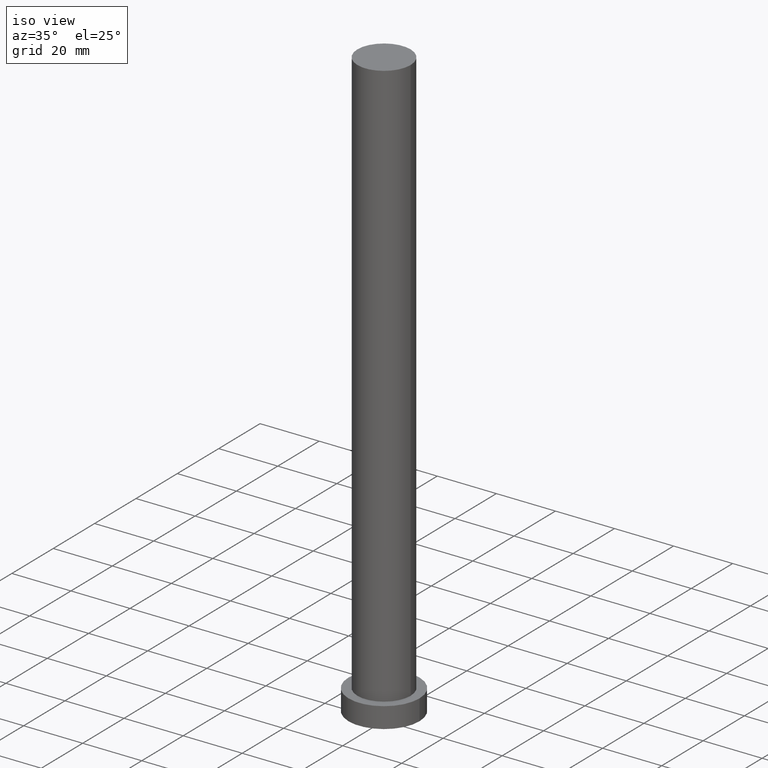
[diagram: clean part render]
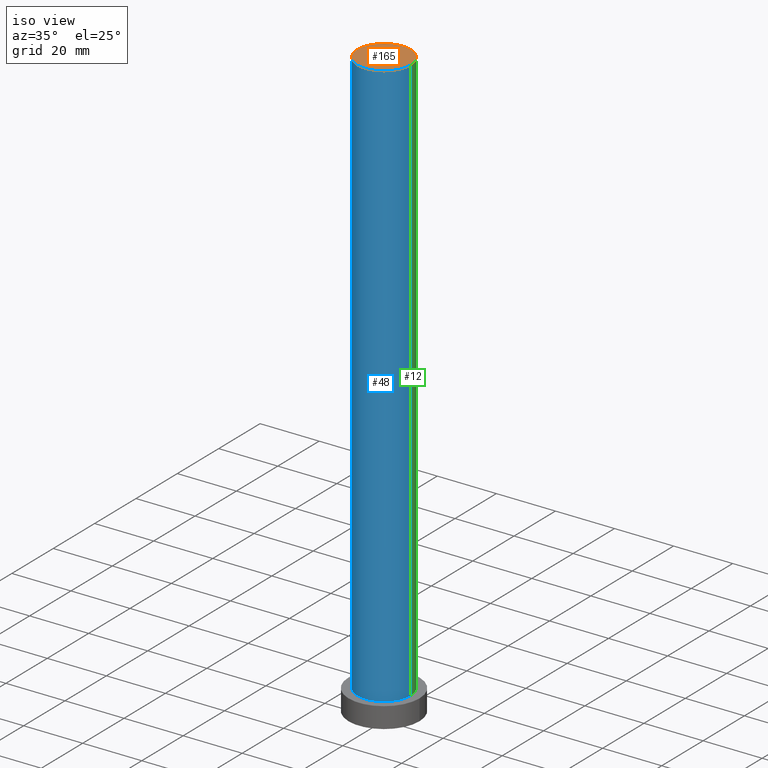
[diagram: same view with three faces highlighted in distinct colors, each labeled with its STEP entity id]
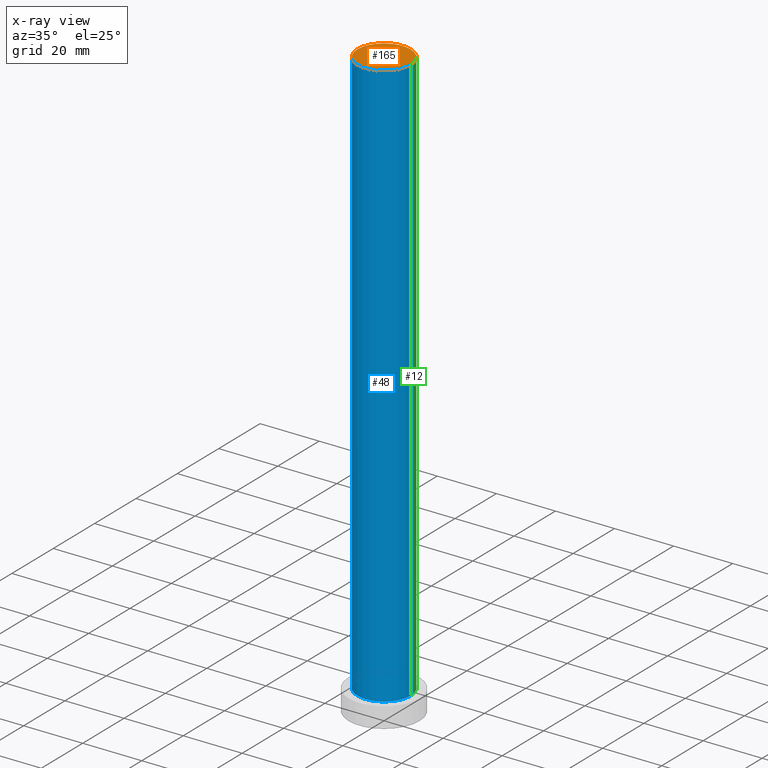
[diagram: x-ray of the same camera — body ghosted, the three highlighted faces saturated]
A machine part, iso view with three faces highlighted in distinct colors.
The next image is the same camera in x-ray (body ghosted, the three faces saturated) — at least one of them is partly hidden behind the body in this view.
Their STEP definitions:

[orange] entity #165 — the highlighted planar face has unit normal (0, 0, 1).
#10 = VERTEX_POINT ( 'NONE', #183 ) ;
#22 = AXIS2_PLACEMENT_3D ( 'NONE', #181, #148, #123 ) ;
#29 = ORIENTED_EDGE ( 'NONE', *, *, #110, .T. ) ;
#46 = CIRCLE ( 'NONE', #22, 9.000000000000000000 ) ;
#68 = EDGE_LOOP ( 'NONE', ( #29, #222 ) ) ;
#72 = DIRECTION ( 'NONE',  ( 0.000000000000000000, 0.000000000000000000, 1.000000000000000000 ) ) ;
#76 = CARTESIAN_POINT ( 'NONE',  ( 9.000000000000000000, 1.102182119232617714E-15, 200.0000000000000000 ) ) ;
#108 = VERTEX_POINT ( 'NONE', #76 ) ;
#109 = AXIS2_PLACEMENT_3D ( 'NONE', #140, #72, #154 ) ;
#110 = EDGE_CURVE ( 'NONE', #10, #108, #242, .T. ) ;
#111 = AXIS2_PLACEMENT_3D ( 'NONE', #235, #232, #229 ) ;
#123 = DIRECTION ( 'NONE',  ( 1.000000000000000000, 0.000000000000000000, 0.000000000000000000 ) ) ;
#140 = CARTESIAN_POINT ( 'NONE',  ( 0.000000000000000000, 0.000000000000000000, 200.0000000000000000 ) ) ;
#148 = DIRECTION ( 'NONE',  ( 0.000000000000000000, 0.000000000000000000, 1.000000000000000000 ) ) ;
#154 = DIRECTION ( 'NONE',  ( 1.000000000000000000, 0.000000000000000000, -0.000000000000000000 ) ) ;
#158 = FACE_OUTER_BOUND ( 'NONE', #68, .T. ) ;
#165 = ADVANCED_FACE ( 'NONE', ( #158 ), #245, .T. ) ;
#181 = CARTESIAN_POINT ( 'NONE',  ( 0.000000000000000000, 0.000000000000000000, 200.0000000000000000 ) ) ;
#183 = CARTESIAN_POINT ( 'NONE',  ( -9.000000000000000000, 0.000000000000000000, 200.0000000000000000 ) ) ;
#222 = ORIENTED_EDGE ( 'NONE', *, *, #248, .T. ) ;
#229 = DIRECTION ( 'NONE',  ( 1.000000000000000000, 0.000000000000000000, 0.000000000000000000 ) ) ;
#232 = DIRECTION ( 'NONE',  ( 0.000000000000000000, 0.000000000000000000, 1.000000000000000000 ) ) ;
#235 = CARTESIAN_POINT ( 'NONE',  ( 0.000000000000000000, 0.000000000000000000, 200.0000000000000000 ) ) ;
#242 = CIRCLE ( 'NONE', #111, 9.000000000000000000 ) ;
#245 = PLANE ( 'NONE',  #109 ) ;
#248 = EDGE_CURVE ( 'NONE', #108, #10, #46, .T. ) ;

[blue] entity #48 — the highlighted cylindrical surface (edge-blend (fillet) strip) has radius 9 mm, axis along (-0, -0, -1).
#3 = VERTEX_POINT ( 'NONE', #62 ) ;
#7 = AXIS2_PLACEMENT_3D ( 'NONE', #193, #39, #99 ) ;
#10 = VERTEX_POINT ( 'NONE', #183 ) ;
#11 = DIRECTION ( 'NONE',  ( 1.000000000000000000, 0.000000000000000000, 0.000000000000000000 ) ) ;
#14 = CARTESIAN_POINT ( 'NONE',  ( -9.000000000000000000, 0.000000000000000000, 200.0000000000000000 ) ) ;
#15 = DIRECTION ( 'NONE',  ( -0.000000000000000000, -0.000000000000000000, -1.000000000000000000 ) ) ;
#16 = EDGE_CURVE ( 'NONE', #108, #129, #75, .T. ) ;
#36 = VECTOR ( 'NONE', #231, 1000.000000000000000 ) ;
#39 = DIRECTION ( 'NONE',  ( -0.000000000000000000, -0.000000000000000000, -1.000000000000000000 ) ) ;
#48 = ADVANCED_FACE ( 'NONE', ( #157 ), #195, .T. ) ;
#49 = ORIENTED_EDGE ( 'NONE', *, *, #16, .F. ) ;
#50 = CIRCLE ( 'NONE', #230, 9.000000000000000000 ) ;
#56 = LINE ( 'NONE', #14, #36 ) ;
#62 = CARTESIAN_POINT ( 'NONE',  ( -9.000000000000000000, 0.000000000000000000, 7.000000000000000000 ) ) ;
#75 = LINE ( 'NONE', #216, #155 ) ;
#76 = CARTESIAN_POINT ( 'NONE',  ( 9.000000000000000000, 1.102182119232617714E-15, 200.0000000000000000 ) ) ;
#94 = CARTESIAN_POINT ( 'NONE',  ( 9.000000000000000000, 1.102182119232617714E-15, 7.000000000000000000 ) ) ;
#99 = DIRECTION ( 'NONE',  ( -1.000000000000000000, 0.000000000000000000, 0.000000000000000000 ) ) ;
#108 = VERTEX_POINT ( 'NONE', #76 ) ;
#110 = EDGE_CURVE ( 'NONE', #10, #108, #242, .T. ) ;
#111 = AXIS2_PLACEMENT_3D ( 'NONE', #235, #232, #229 ) ;
#119 = EDGE_CURVE ( 'NONE', #10, #3, #56, .T. ) ;
#129 = VERTEX_POINT ( 'NONE', #94 ) ;
#132 = ORIENTED_EDGE ( 'NONE', *, *, #110, .F. ) ;
#138 = CARTESIAN_POINT ( 'NONE',  ( 0.000000000000000000, 0.000000000000000000, 7.000000000000000000 ) ) ;
#155 = VECTOR ( 'NONE', #15, 1000.000000000000000 ) ;
#157 = FACE_OUTER_BOUND ( 'NONE', #244, .T. ) ;
#183 = CARTESIAN_POINT ( 'NONE',  ( -9.000000000000000000, 0.000000000000000000, 200.0000000000000000 ) ) ;
#188 = EDGE_CURVE ( 'NONE', #3, #129, #50, .T. ) ;
#193 = CARTESIAN_POINT ( 'NONE',  ( 0.000000000000000000, 0.000000000000000000, 200.0000000000000000 ) ) ;
#195 = CYLINDRICAL_SURFACE ( 'NONE', #7, 9.000000000000000000 ) ;
#211 = DIRECTION ( 'NONE',  ( 0.000000000000000000, 0.000000000000000000, 1.000000000000000000 ) ) ;
#216 = CARTESIAN_POINT ( 'NONE',  ( 9.000000000000000000, 1.102182119232617714E-15, 200.0000000000000000 ) ) ;
#223 = ORIENTED_EDGE ( 'NONE', *, *, #119, .T. ) ;
#229 = DIRECTION ( 'NONE',  ( 1.000000000000000000, 0.000000000000000000, 0.000000000000000000 ) ) ;
#230 = AXIS2_PLACEMENT_3D ( 'NONE', #138, #211, #11 ) ;
#231 = DIRECTION ( 'NONE',  ( -0.000000000000000000, -0.000000000000000000, -1.000000000000000000 ) ) ;
#232 = DIRECTION ( 'NONE',  ( 0.000000000000000000, 0.000000000000000000, 1.000000000000000000 ) ) ;
#235 = CARTESIAN_POINT ( 'NONE',  ( 0.000000000000000000, 0.000000000000000000, 200.0000000000000000 ) ) ;
#238 = ORIENTED_EDGE ( 'NONE', *, *, #188, .T. ) ;
#242 = CIRCLE ( 'NONE', #111, 9.000000000000000000 ) ;
#244 = EDGE_LOOP ( 'NONE', ( #49, #132, #223, #238 ) ) ;

[green] entity #12 — the highlighted cylindrical surface (edge-blend (fillet) strip) has radius 9 mm, axis along (-0, -0, -1).
#3 = VERTEX_POINT ( 'NONE', #62 ) ;
#10 = VERTEX_POINT ( 'NONE', #183 ) ;
#12 = ADVANCED_FACE ( 'NONE', ( #66 ), #168, .T. ) ;
#14 = CARTESIAN_POINT ( 'NONE',  ( -9.000000000000000000, 0.000000000000000000, 200.0000000000000000 ) ) ;
#15 = DIRECTION ( 'NONE',  ( -0.000000000000000000, -0.000000000000000000, -1.000000000000000000 ) ) ;
#16 = EDGE_CURVE ( 'NONE', #108, #129, #75, .T. ) ;
#22 = AXIS2_PLACEMENT_3D ( 'NONE', #181, #148, #123 ) ;
#36 = VECTOR ( 'NONE', #231, 1000.000000000000000 ) ;
#45 = ORIENTED_EDGE ( 'NONE', *, *, #248, .F. ) ;
#46 = CIRCLE ( 'NONE', #22, 9.000000000000000000 ) ;
#56 = LINE ( 'NONE', #14, #36 ) ;
#62 = CARTESIAN_POINT ( 'NONE',  ( -9.000000000000000000, 0.000000000000000000, 7.000000000000000000 ) ) ;
#63 = ORIENTED_EDGE ( 'NONE', *, *, #16, .T. ) ;
#66 = FACE_OUTER_BOUND ( 'NONE', #135, .T. ) ;
#75 = LINE ( 'NONE', #216, #155 ) ;
#76 = CARTESIAN_POINT ( 'NONE',  ( 9.000000000000000000, 1.102182119232617714E-15, 200.0000000000000000 ) ) ;
#80 = DIRECTION ( 'NONE',  ( 1.000000000000000000, 0.000000000000000000, 0.000000000000000000 ) ) ;
#82 = AXIS2_PLACEMENT_3D ( 'NONE', #204, #249, #234 ) ;
#86 = ORIENTED_EDGE ( 'NONE', *, *, #119, .F. ) ;
#94 = CARTESIAN_POINT ( 'NONE',  ( 9.000000000000000000, 1.102182119232617714E-15, 7.000000000000000000 ) ) ;
#108 = VERTEX_POINT ( 'NONE', #76 ) ;
#119 = EDGE_CURVE ( 'NONE', #10, #3, #56, .T. ) ;
#123 = DIRECTION ( 'NONE',  ( 1.000000000000000000, 0.000000000000000000, 0.000000000000000000 ) ) ;
#129 = VERTEX_POINT ( 'NONE', #94 ) ;
#130 = DIRECTION ( 'NONE',  ( 0.000000000000000000, 0.000000000000000000, 1.000000000000000000 ) ) ;
#135 = EDGE_LOOP ( 'NONE', ( #45, #63, #151, #86 ) ) ;
#141 = CIRCLE ( 'NONE', #161, 9.000000000000000000 ) ;
#148 = DIRECTION ( 'NONE',  ( 0.000000000000000000, 0.000000000000000000, 1.000000000000000000 ) ) ;
#151 = ORIENTED_EDGE ( 'NONE', *, *, #209, .T. ) ;
#155 = VECTOR ( 'NONE', #15, 1000.000000000000000 ) ;
#161 = AXIS2_PLACEMENT_3D ( 'NONE', #253, #130, #80 ) ;
#168 = CYLINDRICAL_SURFACE ( 'NONE', #82, 9.000000000000000000 ) ;
#181 = CARTESIAN_POINT ( 'NONE',  ( 0.000000000000000000, 0.000000000000000000, 200.0000000000000000 ) ) ;
#183 = CARTESIAN_POINT ( 'NONE',  ( -9.000000000000000000, 0.000000000000000000, 200.0000000000000000 ) ) ;
#204 = CARTESIAN_POINT ( 'NONE',  ( 0.000000000000000000, 0.000000000000000000, 200.0000000000000000 ) ) ;
#209 = EDGE_CURVE ( 'NONE', #129, #3, #141, .T. ) ;
#216 = CARTESIAN_POINT ( 'NONE',  ( 9.000000000000000000, 1.102182119232617714E-15, 200.0000000000000000 ) ) ;
#231 = DIRECTION ( 'NONE',  ( -0.000000000000000000, -0.000000000000000000, -1.000000000000000000 ) ) ;
#234 = DIRECTION ( 'NONE',  ( -1.000000000000000000, 0.000000000000000000, 0.000000000000000000 ) ) ;
#248 = EDGE_CURVE ( 'NONE', #108, #10, #46, .T. ) ;
#249 = DIRECTION ( 'NONE',  ( -0.000000000000000000, -0.000000000000000000, -1.000000000000000000 ) ) ;
#253 = CARTESIAN_POINT ( 'NONE',  ( 0.000000000000000000, 0.000000000000000000, 7.000000000000000000 ) ) ;